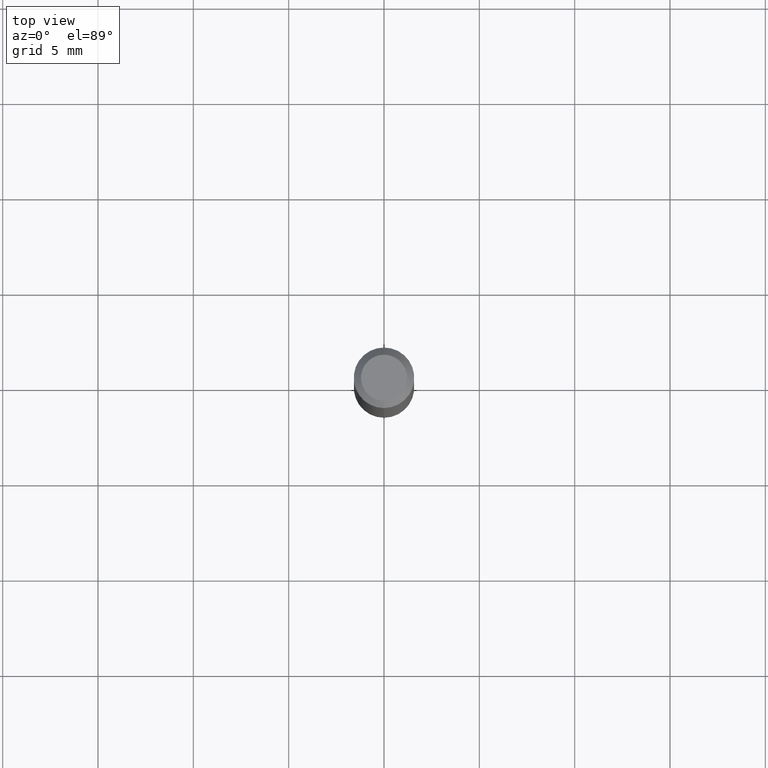
[diagram: clean part render]
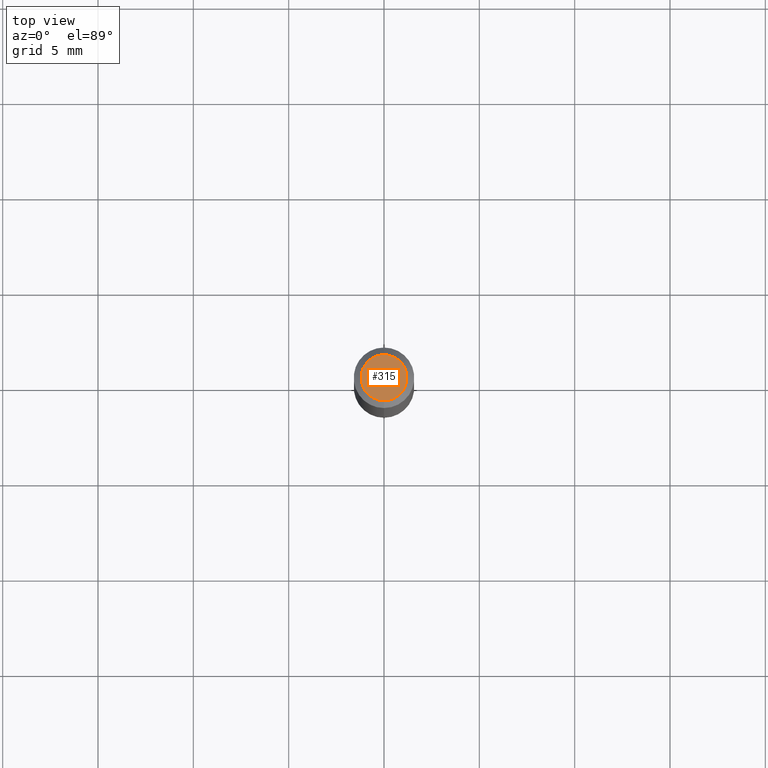
[diagram: same view with one face highlighted and labeled with its STEP entity id]
A machine part, top view. The second image highlights one B-rep face of the part: STEP entity #315.
In plain terms, the highlighted planar face has unit normal (0, -0, -1).
Its self-contained STEP definition (entity closure, byte-faithful):
#2 = AXIS2_PLACEMENT_3D ( 'NONE', #37, #175, #291 ) ;
#5 = ORIENTED_EDGE ( 'NONE', *, *, #209, .T. ) ;
#37 = CARTESIAN_POINT ( 'NONE',  ( 3.316907271900976096E-16, 0.04749999999999999362, 3.175167536350543360E-17 ) ) ;
#81 = ORIENTED_EDGE ( 'NONE', *, *, #348, .T. ) ;
#89 = FACE_OUTER_BOUND ( 'NONE', #178, .T. ) ;
#128 = CARTESIAN_POINT ( 'NONE',  ( -3.773273898774340269E-16, -0.04749999999999999362, 8.336290932868603194E-17 ) ) ;
#147 = CIRCLE ( 'NONE', #249, 0.04749999999999999362 ) ;
#175 = DIRECTION ( 'NONE',  ( 2.443524030459947148E-29, -3.494266368371376685E-15, -1.000000000000000000 ) ) ;
#178 = EDGE_LOOP ( 'NONE', ( #81, #5 ) ) ;
#209 = EDGE_CURVE ( 'NONE', #535, #464, #147, .T. ) ;
#249 = AXIS2_PLACEMENT_3D ( 'NONE', #290, #311, #516 ) ;
#264 = PLANE ( 'NONE',  #2 ) ;
#290 = CARTESIAN_POINT ( 'NONE',  ( 2.009413646625942603E-45, -2.900093671194902056E-31, -8.261474316895435273E-17 ) ) ;
#291 = DIRECTION ( 'NONE',  ( 6.982962677686265922E-15, 1.000000000000000000, -3.494266368371376685E-15 ) ) ;
#311 = DIRECTION ( 'NONE',  ( -2.443524030459947148E-29, 3.494266368371377080E-15, 1.000000000000000000 ) ) ;
#315 = ADVANCED_FACE ( 'NONE', ( #89 ), #264, .F. ) ;
#319 = CARTESIAN_POINT ( 'NONE',  ( 2.009413646625942603E-45, -2.900093671194902056E-31, -8.261474316895435273E-17 ) ) ;
#328 = CARTESIAN_POINT ( 'NONE',  ( 3.840629472727447874E-16, 0.04749999999999999362, -2.485923956665947374E-16 ) ) ;
#330 = AXIS2_PLACEMENT_3D ( 'NONE', #319, #500, #550 ) ;
#348 = EDGE_CURVE ( 'NONE', #464, #535, #390, .T. ) ;
#390 = CIRCLE ( 'NONE', #330, 0.04749999999999999362 ) ;
#464 = VERTEX_POINT ( 'NONE', #328 ) ;
#500 = DIRECTION ( 'NONE',  ( -2.443524030459947148E-29, 3.494266368371377080E-15, 1.000000000000000000 ) ) ;
#516 = DIRECTION ( 'NONE',  ( -6.982962677686266711E-15, -1.000000000000000000, 3.494266368371377080E-15 ) ) ;
#535 = VERTEX_POINT ( 'NONE', #128 ) ;
#550 = DIRECTION ( 'NONE',  ( -6.982962677686266711E-15, -1.000000000000000000, 3.494266368371377080E-15 ) ) ;